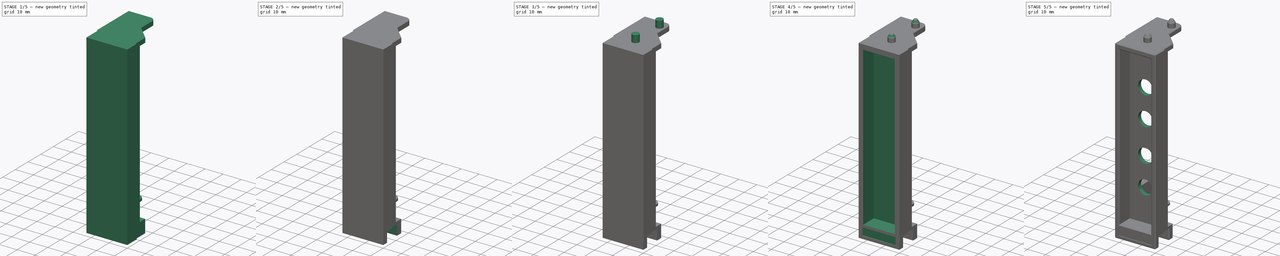
[diagram: build sequence overview — one tinted view per stage of 5, left to right]
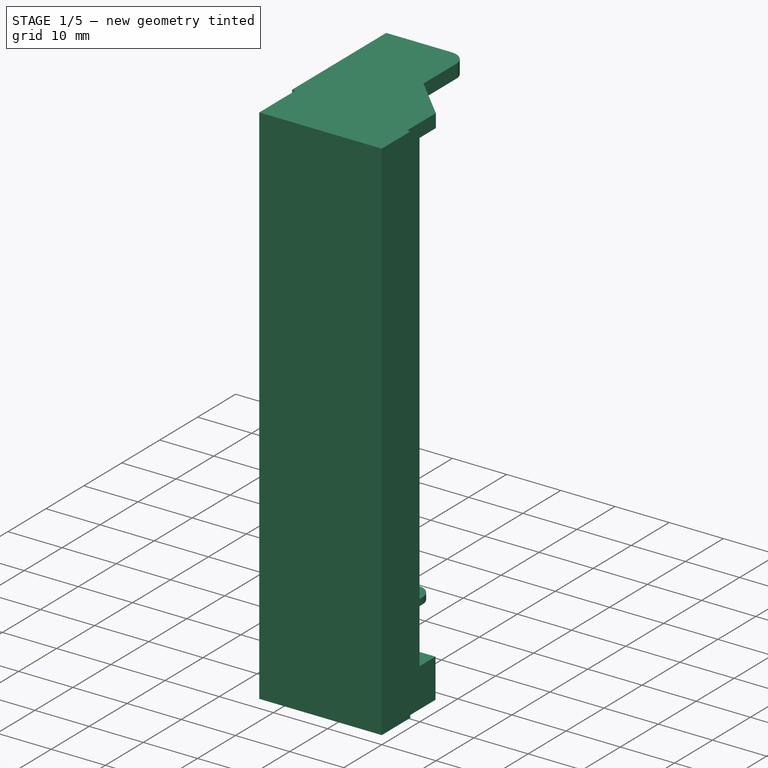
[diagram: stage 1 of 5 — iso view after this stage's code; geometry added in this stage tinted green]
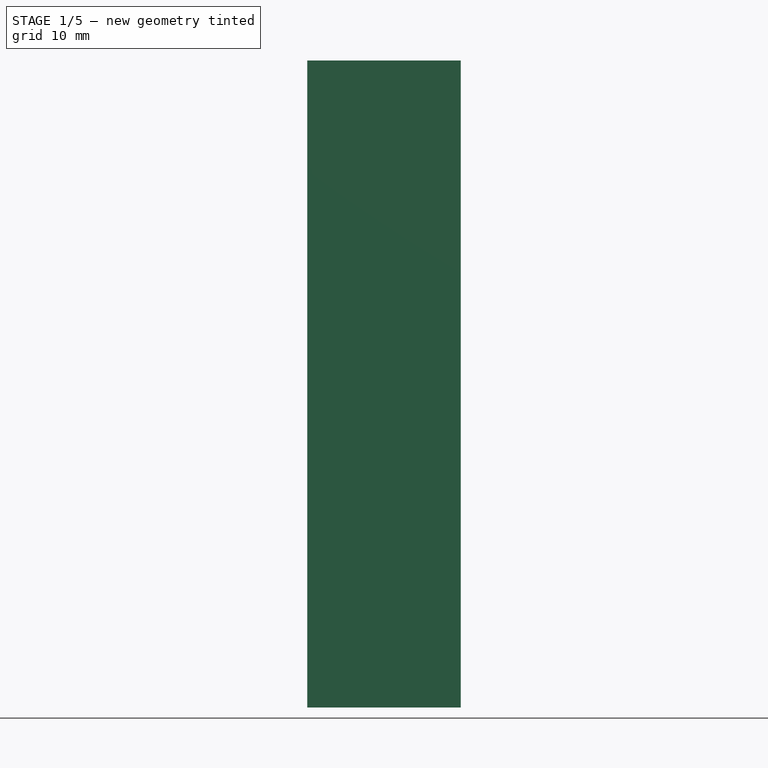
[diagram: stage 1 of 5 — front view after this stage's code; geometry added in this stage tinted green]
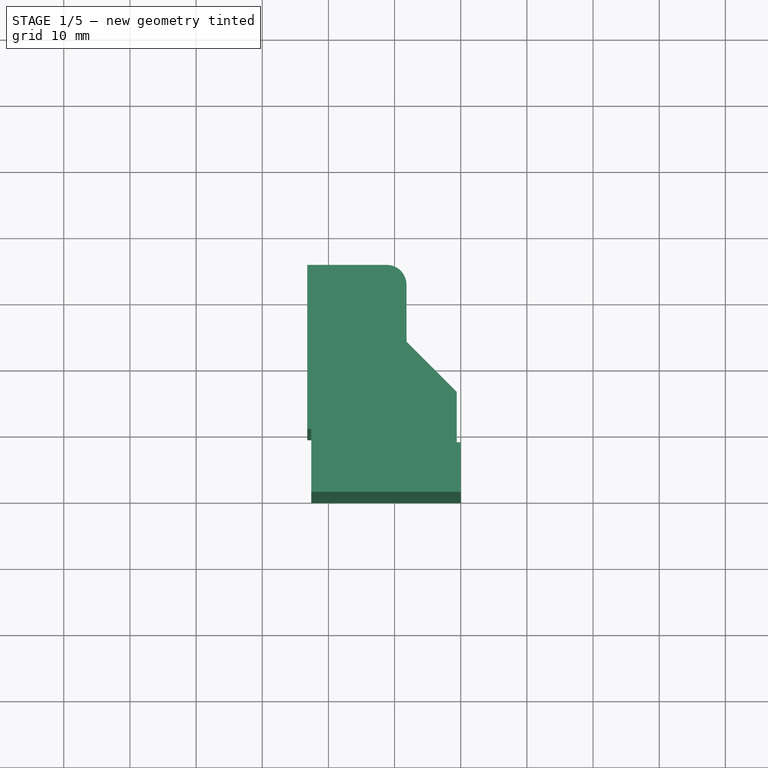
[diagram: stage 1 of 5 — top view after this stage's code; geometry added in this stage tinted green]
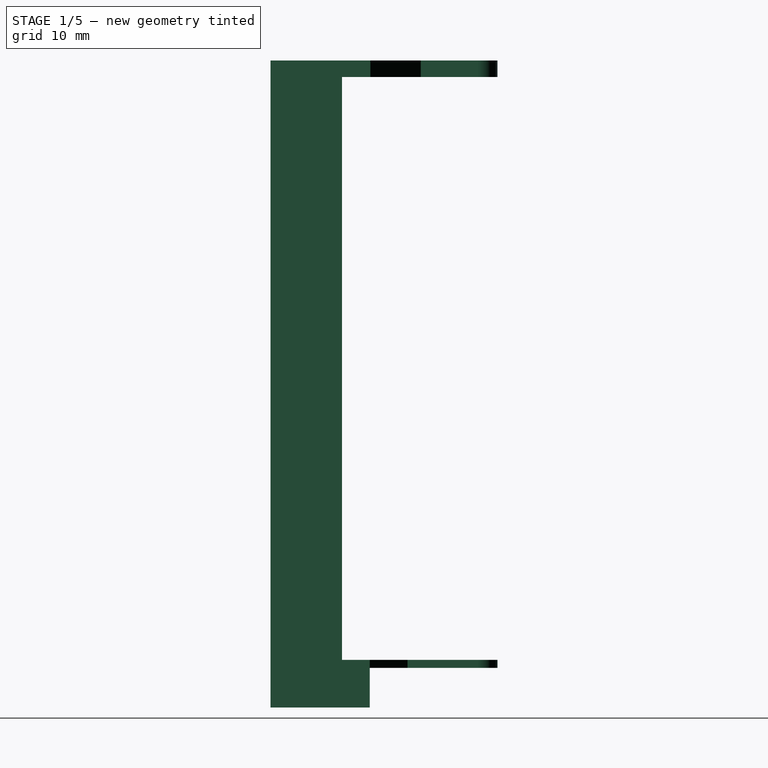
[diagram: stage 1 of 5 — right view after this stage's code; geometry added in this stage tinted green]
FCSTD DOCUMENT  (FreeCAD 0.20R29177 (Git))
Label: S1BackSide_OPNA
License: All rights reserved
LicenseURL: http://en.wikipedia.org/wiki/All_rights_reserved
objects: Sketcher::SketchObject×12, PartDesign::Pad×7, PartDesign::Chamfer×6, PartDesign::Pocket×5, PartDesign::Body×1
note: 49 computed .brp shape members not serialized (recipe doc carries the construction recipe); baked Part::Feature solids carry a one-line shape summary decoded from their .brp

FEATURE [Sketcher::SketchObject] Sketch
  FullyConstrained = true
  MapMode = 5
  Support = -> [XY_Plane]
  sketch-geometry (8):
    g0: LineSegment StartX=-22.6 StartY=0 StartZ=0 EndX=-22.6 EndY=9.5 EndZ=0
    g1: LineSegment StartX=-22.6 StartY=9.5 StartZ=0 EndX=-23.2 EndY=9.5 EndZ=0
    g2: LineSegment StartX=-23.2 StartY=9.5 StartZ=0 EndX=-23.2 EndY=10.8 EndZ=0
    g3: LineSegment StartX=-23.2 StartY=10.8 StartZ=0 EndX=-0.6 EndY=10.8 EndZ=0
    g4: LineSegment StartX=-0.6 StartY=10.8 StartZ=0 EndX=-0.6 EndY=7.5 EndZ=0
    g5: LineSegment StartX=-0.6 StartY=7.5 StartZ=0 EndX=0 EndY=7.5 EndZ=0
    g6: LineSegment StartX=0 StartY=7.5 StartZ=0 EndX=0 EndY=0 EndZ=0
    g7: LineSegment StartX=0 StartY=0 StartZ=0 EndX=-22.6 EndY=0 EndZ=0
  constraints (24):
    c: Vertical(g0)
    c: Coincident(g0,g1)
    c: Horizontal(g1)
    c: Coincident(g1,g2)
    c: Vertical(g2)
    c: Coincident(g2,g3)
    c: Horizontal(g3)
    c: Coincident(g3,g4)
    c: Vertical(g4)
    c: Coincident(g4,g5)
    c: Horizontal(g5)
    c: Coincident(g5,g6)
    c: Vertical(g6)
    c: Coincident(g6,g7)
    c: Coincident(g7,g0)
    c: Horizontal(g7)
    c: DistanceX(g7,g7) = 22.6
    c: DistanceX(g3,g3) = 22.6
    c: DistanceY(g6,g6) = 7.5
    c: DistanceY(g0,g0) = 9.5
    c: DistanceY(g2,g2) = 1.3
    c: DistanceX(g5,g5) = 0.6
    c: DistanceX(g6) = 0
    c: DistanceY(g6) = 0
FEATURE [PartDesign::Pad] Pad
  Direction = (0,0,1)
  Length = 97.8
  Length2 = 10
  Profile = -> Sketch
  ReferenceAxis = -> Sketch [N_Axis]
  Type = 0
FEATURE [Sketcher::SketchObject] Sketch001
  FullyConstrained = true
  MapMode = 5
  Placement = pos=(0,0,97.8) rot=(0,0,1;0rad)
  Support = -> [Pad]
  sketch-geometry (7):
    g0: LineSegment StartX=-23.2 StartY=10.8 StartZ=0 EndX=-23.2 EndY=34.3 EndZ=0
    g1: LineSegment StartX=-23.2 StartY=34.3 StartZ=0 EndX=-11.2 EndY=34.3 EndZ=0
    g2: LineSegment StartX=-8.2 StartY=31.3 StartZ=0 EndX=-8.2 EndY=22.7 EndZ=0
    g3: LineSegment StartX=-8.2 StartY=22.7 StartZ=0 EndX=-0.6 EndY=15.1 EndZ=0
    g4: LineSegment StartX=-0.6 StartY=15.1 StartZ=0 EndX=-0.6 EndY=10.8 EndZ=0
    g5: LineSegment StartX=-0.6 StartY=10.8 StartZ=0 EndX=-23.2 EndY=10.8 EndZ=0
    g6: ArcOfCircle CenterX=-11.2 CenterY=31.3 CenterZ=0 NormalX=0 NormalY=0 NormalZ=1 AngleXU=0 Radius=3 StartAngle=-9e-16 EndAngle=1.5708
  constraints (20):
    c: Vertical(g0)
    c: Coincident(g0,g1)
    c: Vertical(g2)
    c: Coincident(g3,g4)
    c: Vertical(g4)
    c: Coincident(g4,g5)
    c: Coincident(g5,g0)
    c: Horizontal(g5)
    c: DistanceX(g5,g5) = 22.6
    c: DistanceY(g0,g0) = 23.5
    c: DistanceY(g-1,g4) = 10.8
    c: DistanceX(g4,g-1) = 0.6
    c: Coincident(g2,g3)
    c: DistanceY(g4,g4) = 4.3
    c: Tangent(g1,g6) = 1.5708
    c: Tangent(g2,g6) = 1.5708
    c: Horizontal(g1)
    c: Radius(g6) = 3
    c: Angle(g3,g4) = 2.35619
    c: DistanceX(g0,g2) = 15
FEATURE [PartDesign::Pad] Pad001
  BaseFeature = -> Pad
  Direction = (0,0,1)
  Length = 2.5
  Length2 = 10
  Profile = -> Sketch001
  ReferenceAxis = -> Sketch001 [N_Axis]
  Reversed = true
  Type = 0
FEATURE [Sketcher::SketchObject] Sketch002
  FullyConstrained = true
  MapMode = 5
  Placement = pos=(0,0,0) rot=(1,0,0;3.14159rad)
  Support = -> [Pad001]
  sketch-geometry (4):
    g0: LineSegment StartX=-23.2 StartY=-10.8 StartZ=0 EndX=-0.6 EndY=-10.8 EndZ=0
    g1: LineSegment StartX=-0.6 StartY=-10.8 StartZ=0 EndX=-0.6 EndY=-15 EndZ=0
    g2: LineSegment StartX=-0.6 StartY=-15 StartZ=0 EndX=-23.2 EndY=-15 EndZ=0
    g3: LineSegment StartX=-23.2 StartY=-15 StartZ=0 EndX=-23.2 EndY=-10.8 EndZ=0
  constraints (12):
    c: Coincident(g0,g1)
    c: Coincident(g1,g2)
    c: Coincident(g2,g3)
    c: Coincident(g3,g0)
    c: Horizontal(g0)
    c: Horizontal(g2)
    c: Vertical(g1)
    c: Vertical(g3)
    c: DistanceY(g1,g1) = 4.2
    c: DistanceX(g0,g-1) = 0.6
    c: DistanceY(g0,g-1) = 10.8
    c: DistanceX(g2,g2) = 22.6
FEATURE [PartDesign::Pad] Pad002
  BaseFeature = -> Pad001
  Direction = (0,0,-1)
  Length = 7.2
  Length2 = 10
  Profile = -> Sketch002
  ReferenceAxis = -> Sketch002 [N_Axis]
  Reversed = true
  Type = 0
FEATURE [Sketcher::SketchObject] Sketch003
  FullyConstrained = true
  MapMode = 5
  Placement = pos=(0,0,7.2) rot=(0,0,1;0rad)
  Support = -> [Pad002]
  sketch-geometry (6):
    g0: LineSegment StartX=-23.2 StartY=15 StartZ=0 EndX=-23.2 EndY=34.3 EndZ=0
    g1: LineSegment StartX=-23.2 StartY=34.3 StartZ=0 EndX=-17.4 EndY=34.3 EndZ=0
    g2: LineSegment StartX=-14.4 StartY=31.3 StartZ=0 EndX=-14.4 EndY=20.7 EndZ=0
    g3: LineSegment StartX=-14.4 StartY=20.7 StartZ=0 EndX=-8.7 EndY=15 EndZ=0
    g4: LineSegment StartX=-8.7 StartY=15 StartZ=0 EndX=-23.2 EndY=15 EndZ=0
    g5: ArcOfCircle CenterX=-17.4 CenterY=31.3 CenterZ=0 NormalX=0 NormalY=0 NormalZ=1 AngleXU=0 Radius=3 StartAngle=0 EndAngle=1.5708
  constraints (17):
    c: Vertical(g0)
    c: Coincident(g0,g1)
    c: Horizontal(g1)
    c: Vertical(g2)
    c: Coincident(g2,g3)
    c: Coincident(g3,g4)
    c: Coincident(g4,g0)
    c: Horizontal(g4)
    c: DistanceY(g0,g0) = 19.3
    c: DistanceX(g4,g4) = 14.5
    c: DistanceX(g3,g-1) = 8.7
    c: DistanceY(g-1,g3) = 15
    c: Angle(g3,g4) = 0.785398
    c: Tangent(g1,g5) = 1.5708
    c: Tangent(g2,g5) = 1.5708
    c: Radius(g5) = 3
    c: DistanceX(g0,g2) = 8.8
FEATURE [PartDesign::Pad] Pad003
  BaseFeature = -> Pad002
  Direction = (0,0,1)
  Length = 1.2
  Length2 = 10
  Profile = -> Sketch003
  ReferenceAxis = -> Sketch003 [N_Axis]
  Reversed = true
  Type = 0
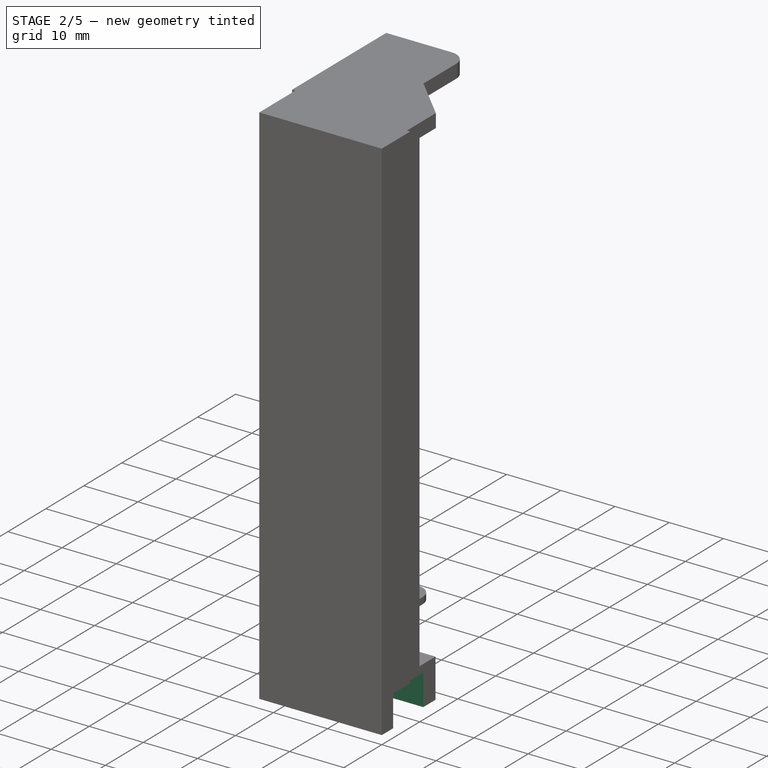
[diagram: stage 2 of 5 — iso view after this stage's code; geometry added in this stage tinted green]
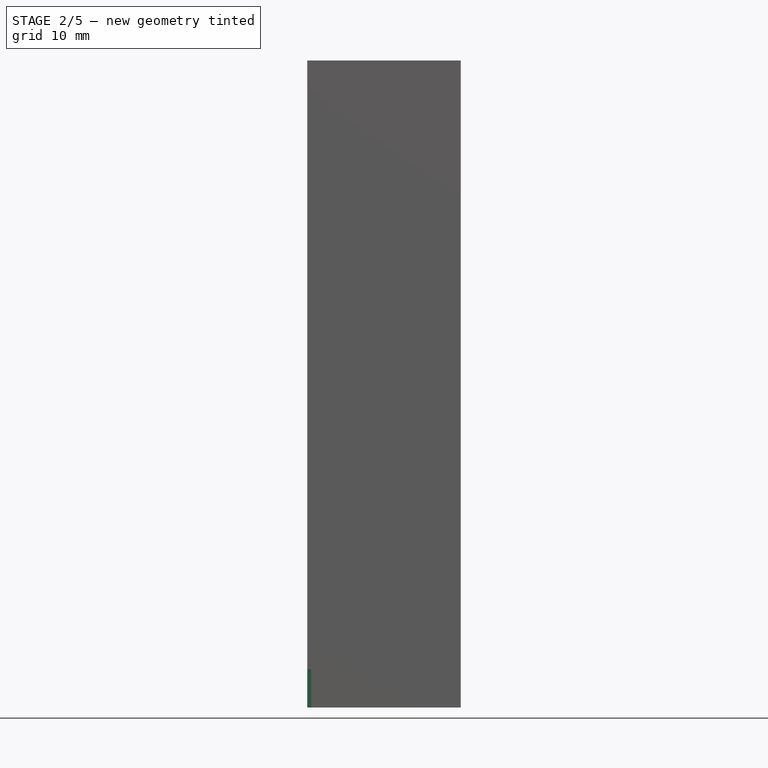
[diagram: stage 2 of 5 — front view after this stage's code; geometry added in this stage tinted green]
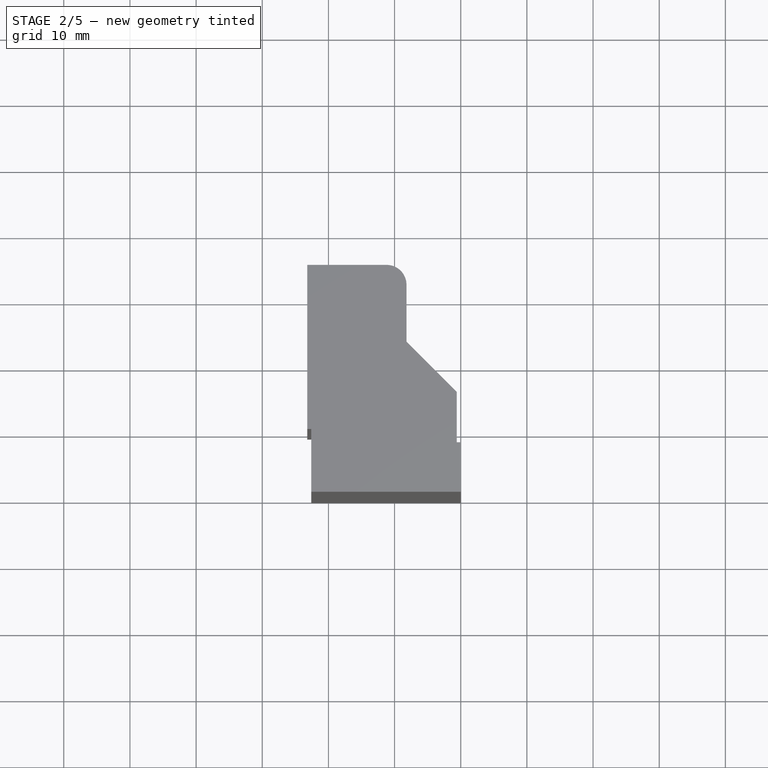
[diagram: stage 2 of 5 — top view after this stage's code; geometry added in this stage tinted green]
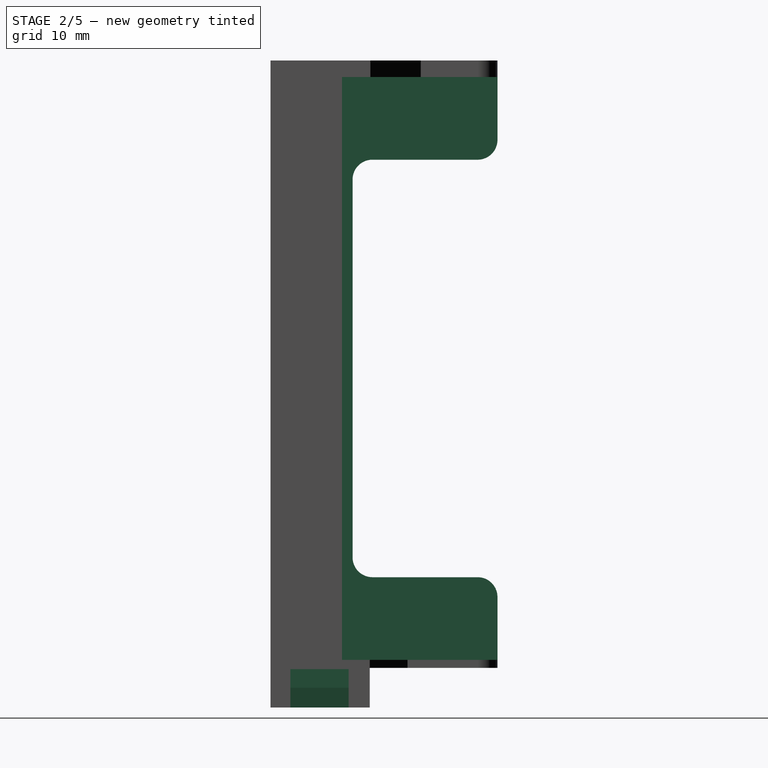
[diagram: stage 2 of 5 — right view after this stage's code; geometry added in this stage tinted green]
FEATURE [Sketcher::SketchObject] Sketch004
  FullyConstrained = true
  MapMode = 5
  Placement = pos=(-23.2,0,0) rot=(0.57735,-0.57735,-0.57735;2.0944rad)
  Support = -> [Pad003]
  sketch-geometry (12):
    g0: LineSegment StartX=-34.3 StartY=7.2 StartZ=0 EndX=-34.3 EndY=16.7 EndZ=0
    g1: LineSegment StartX=-31.3 StartY=19.7 StartZ=0 EndX=-15.4 EndY=19.7 EndZ=0
    g2: LineSegment StartX=-12.4 StartY=22.7 StartZ=0 EndX=-12.4 EndY=79.8 EndZ=0
    g3: LineSegment StartX=-15.4 StartY=82.8 StartZ=0 EndX=-31.3 EndY=82.8 EndZ=0
    g4: LineSegment StartX=-34.3 StartY=85.8 StartZ=0 EndX=-34.3 EndY=95.3 EndZ=0
    g5: LineSegment StartX=-34.3 StartY=95.3 StartZ=0 EndX=-10.8 EndY=95.3 EndZ=0
    g6: LineSegment StartX=-10.8 StartY=95.3 StartZ=0 EndX=-10.8 EndY=7.2 EndZ=0
    g7: LineSegment StartX=-10.8 StartY=7.2 StartZ=0 EndX=-34.3 EndY=7.2 EndZ=0
    g8: ArcOfCircle CenterX=-31.3 CenterY=16.7 CenterZ=0 NormalX=0 NormalY=0 NormalZ=1 AngleXU=0 Radius=3 StartAngle=1.5708 EndAngle=3.14159
    g9: ArcOfCircle CenterX=-15.4 CenterY=22.7 CenterZ=0 NormalX=0 NormalY=0 NormalZ=1 AngleXU=0 Radius=3 StartAngle=4.71239 EndAngle=6.28319
    g10: ArcOfCircle CenterX=-31.3 CenterY=85.8 CenterZ=0 NormalX=0 NormalY=0 NormalZ=1 AngleXU=0 Radius=3 StartAngle=3.14159 EndAngle=4.71239
    g11: ArcOfCircle CenterX=-15.4 CenterY=79.8 CenterZ=0 NormalX=0 NormalY=0 NormalZ=1 AngleXU=0 Radius=3 StartAngle=1.3e-15 EndAngle=1.5708
  constraints (32):
    c: Vertical(g0)
    c: Horizontal(g1)
    c: Vertical(g2)
    c: Horizontal(g3)
    c: Vertical(g4)
    c: Coincident(g4,g5)
    c: Horizontal(g5)
    c: Coincident(g5,g6)
    c: Vertical(g6)
    c: Coincident(g6,g7)
    c: Coincident(g7,g0)
    c: Horizontal(g7)
    c: Tangent(g0,g8) = 1.5708
    c: Tangent(g1,g8) = 1.5708
    c: Tangent(g1,g9) = -1.5708
    c: Tangent(g2,g9) = -1.5708
    c: Tangent(g3,g10) = 1.5708
    c: Tangent(g4,g10) = 1.5708
    c: Tangent(g2,g11) = -1.5708
    c: Tangent(g3,g11) = -1.5708
    c: Radius(g11) = 3
    c: Radius(g10) = 3
    c: Radius(g9) = 3
    c: Radius(g8) = 3
    c: DistanceX(g7,g7) = 23.5
    c: DistanceX(g6,g-1) = 10.8
    c: DistanceY(g-1,g6) = 7.2
    c: DistanceX(g5,g5) = 23.5
    c: DistanceY(g6,g6) = 88.1
    c: DistanceX(g2,g6) = 1.6
    c: DistanceY(g3,g4) = 12.5
    c: DistanceY(g0,g1) = 12.5
FEATURE [PartDesign::Pad] Pad004
  BaseFeature = -> Pad003
  Direction = (-1,0,0)
  Length = 2.5
  Length2 = 10
  Profile = -> Sketch004
  ReferenceAxis = -> Sketch004 [N_Axis]
  Reversed = true
  Type = 0
FEATURE [Sketcher::SketchObject] Sketch005
  FullyConstrained = true
  MapMode = 5
  Placement = pos=(0,0,0) rot=(1,0,0;3.14159rad)
  Support = -> [Pad004]
  sketch-geometry (8):
    g0: LineSegment StartX=-23.2 StartY=-3 StartZ=0 EndX=-12.8 EndY=-3 EndZ=0
    g1: LineSegment StartX=-12.8 StartY=-3 StartZ=0 EndX=-12.8 EndY=-11.8 EndZ=0
    g2: LineSegment StartX=-12.8 StartY=-11.8 StartZ=0 EndX=-23.2 EndY=-11.8 EndZ=0
    g3: LineSegment StartX=-23.2 StartY=-11.8 StartZ=0 EndX=-23.2 EndY=-3 EndZ=0
    g4: LineSegment StartX=0 StartY=-3 StartZ=0 EndX=-9.8 EndY=-3 EndZ=0
    g5: LineSegment StartX=-9.8 StartY=-3 StartZ=0 EndX=-9.8 EndY=-11.8 EndZ=0
    g6: LineSegment StartX=-9.8 StartY=-11.8 StartZ=0 EndX=0 EndY=-11.8 EndZ=0
    g7: LineSegment StartX=0 StartY=-11.8 StartZ=0 EndX=0 EndY=-3 EndZ=0
  constraints (24):
    c: Coincident(g0,g1)
    c: Coincident(g1,g2)
    c: Coincident(g2,g3)
    c: Coincident(g3,g0)
    c: Horizontal(g0)
    c: Horizontal(g2)
    c: Vertical(g1)
    c: Coincident(g4,g5)
    c: Coincident(g5,g6)
    c: Coincident(g6,g7)
    c: Coincident(g7,g4)
    c: Horizontal(g4)
    c: Horizontal(g6)
    c: Vertical(g5)
    c: Vertical(g7)
    c: DistanceY(g4,g-1) = 3
    c: DistanceY(g7,g7) = 8.8
    c: DistanceX(g-1,g4) = 0
    c: DistanceX(g4,g4) = 9.8
    c: DistanceY(g1,g1) = 8.8
    c: DistanceY(g0,g4) = 0
    c: DistanceX(g0,g0) = 10.4
    c: DistanceX(g0,g4) = 3
    c: Vertical(g3)
FEATURE [PartDesign::Pocket] Pocket
  BaseFeature = -> Pad004
  Direction = (0,0,1)
  Length = 5.8
  Length2 = 5
  Profile = -> Sketch005
  ReferenceAxis = -> Sketch005 [N_Axis]
  Type = 0
FEATURE [PartDesign::Chamfer] Chamfer
  Angle = 45
  Base = -> Pocket [Edge10]
  BaseFeature = -> Pocket
  ChamferType = 1
  FlipDirection = false
  Size = 0.6
  Size2 = 3
  SupportTransform = false
  UseAllEdges = false
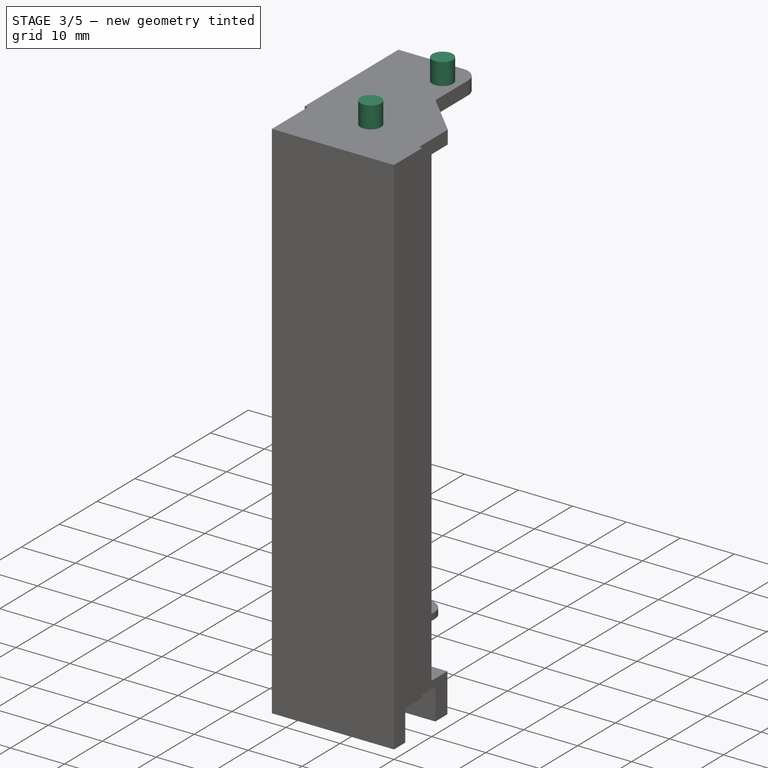
[diagram: stage 3 of 5 — iso view after this stage's code; geometry added in this stage tinted green]
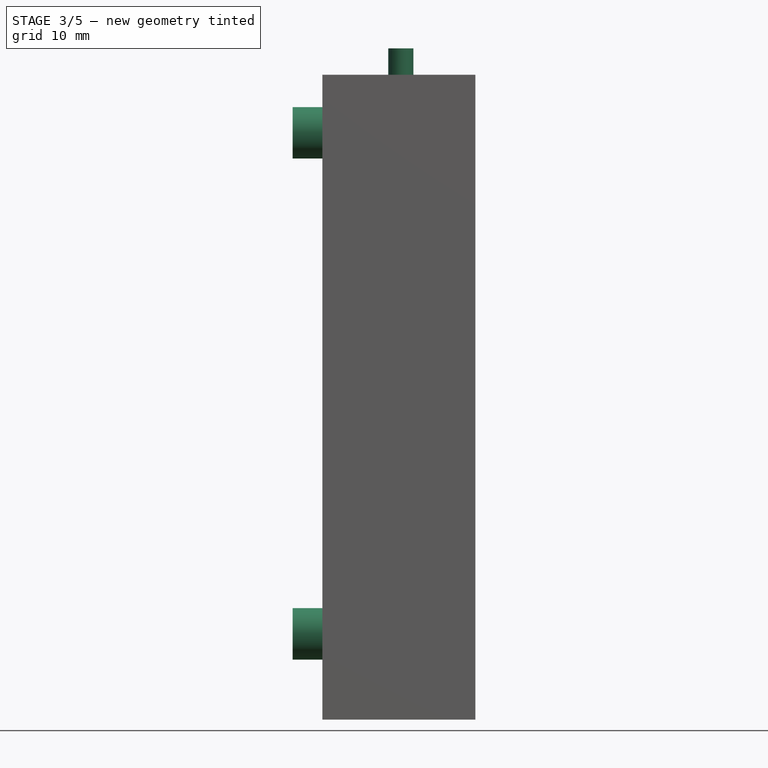
[diagram: stage 3 of 5 — front view after this stage's code; geometry added in this stage tinted green]
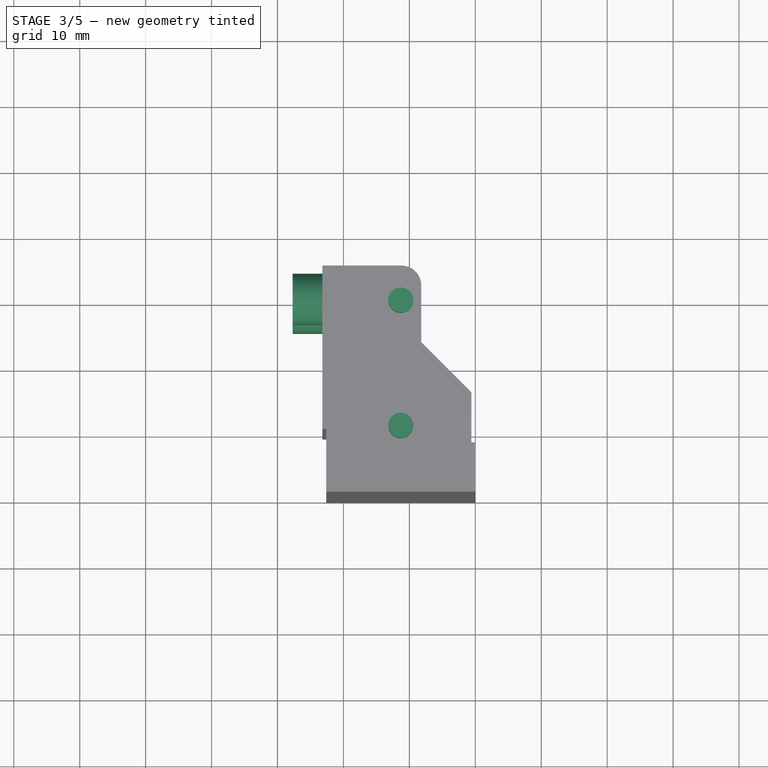
[diagram: stage 3 of 5 — top view after this stage's code; geometry added in this stage tinted green]
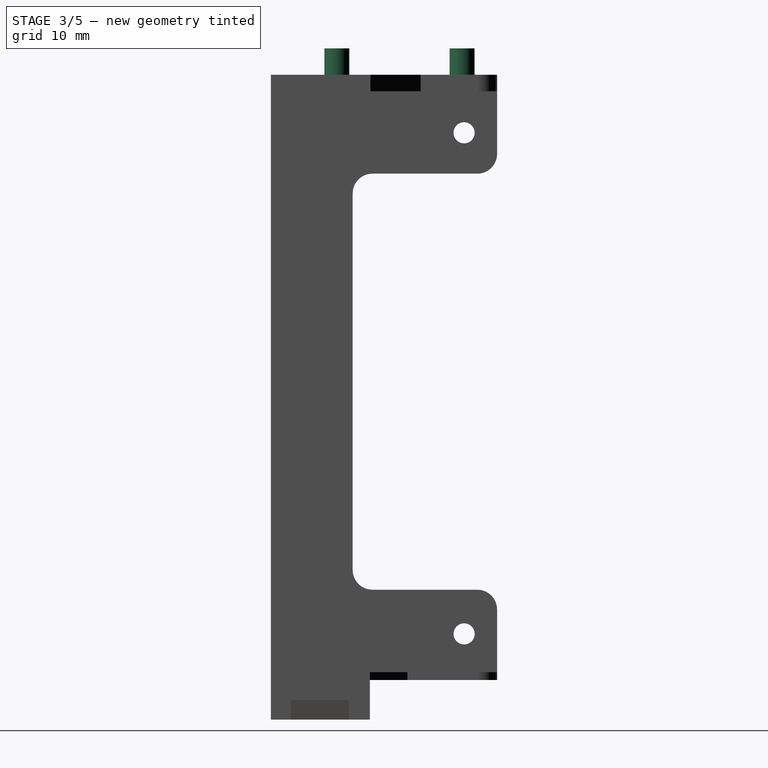
[diagram: stage 3 of 5 — right view after this stage's code; geometry added in this stage tinted green]
FEATURE [PartDesign::Chamfer] Chamfer001
  Angle = 45
  Base = -> Chamfer [Edge3]
  BaseFeature = -> Chamfer
  ChamferType = 1
  FlipDirection = false
  Size = 0.6
  Size2 = 3
  SupportTransform = false
  UseAllEdges = false
FEATURE [Sketcher::SketchObject] Sketch006
  FullyConstrained = true
  MapMode = 5
  Placement = pos=(-23.2,0,0) rot=(0.57735,-0.57735,-0.57735;2.0944rad)
  Support = -> [Chamfer001]
  sketch-geometry (2):
    g0: Circle CenterX=-29.3 CenterY=89 CenterZ=0 NormalX=0 NormalY=0 NormalZ=1 AngleXU=0 Radius=3.9
    g1: Circle CenterX=-29.3 CenterY=13 CenterZ=0 NormalX=0 NormalY=0 NormalZ=1 AngleXU=0 Radius=3.9
  constraints (6):
    c: Diameter(g0) = 7.8
    c: Diameter(g1) = 7.8
    c: DistanceX(g1,g-1) = 29.3
    c: DistanceX(g1,g0) = 0
    c: DistanceY(g-1,g1) = 13
    c: DistanceY(g1,g0) = 76
FEATURE [PartDesign::Pad] Pad005
  BaseFeature = -> Chamfer001
  Direction = (-1,0,0)
  Length = 4.5
  Length2 = 10
  Profile = -> Sketch006
  ReferenceAxis = -> Sketch006 [N_Axis]
  Type = 0
FEATURE [Sketcher::SketchObject] Sketch007
  FullyConstrained = true
  MapMode = 5
  Placement = pos=(-23.2,0,0) rot=(0.57735,-0.57735,-0.57735;2.0944rad)
  Support = -> [Pad005]
  sketch-geometry (2):
    g0: Circle CenterX=-29.3 CenterY=13 CenterZ=0 NormalX=0 NormalY=0 NormalZ=1 AngleXU=0 Radius=1.6
    g1: Circle CenterX=-29.3 CenterY=89 CenterZ=0 NormalX=0 NormalY=0 NormalZ=1 AngleXU=0 Radius=1.6
  constraints (6):
    c: Diameter(g1) = 3.2
    c: Diameter(g0) = 3.2
    c: DistanceX(g0,g-1) = 29.3
    c: DistanceY(g-1,g0) = 13
    c: DistanceX(g0,g1) = 0
    c: DistanceY(g0,g1) = 76
FEATURE [PartDesign::Pocket] Pocket001
  BaseFeature = -> Pad005
  Direction = (1,0,0)
  Length = 10
  Length2 = 5
  Midplane = true
  Profile = -> Sketch007
  ReferenceAxis = -> Sketch007 [N_Axis]
  Type = 0
FEATURE [Sketcher::SketchObject] Sketch008
  FullyConstrained = true
  MapMode = 5
  Placement = pos=(0,0,97.8) rot=(0,0,1;0rad)
  Support = -> [Pocket001]
  sketch-geometry (2):
    g0: Circle CenterX=-11.3 CenterY=10 CenterZ=0 NormalX=0 NormalY=0 NormalZ=1 AngleXU=0 Radius=1.9
    g1: Circle CenterX=-11.3 CenterY=29 CenterZ=0 NormalX=0 NormalY=0 NormalZ=1 AngleXU=0 Radius=1.9
  constraints (6):
    c: Diameter(g0) = 3.8
    c: Diameter(g1) = 3.8
    c: DistanceX(g1,g0) = 0
    c: DistanceX(g0,g-1) = 11.3
    c: DistanceY(g0,g1) = 19
    c: DistanceY(g-1,g0) = 10
FEATURE [PartDesign::Pad] Pad006
  BaseFeature = -> Pocket001
  Direction = (0,0,1)
  Length = 4
  Length2 = 10
  Profile = -> Sketch008
  ReferenceAxis = -> Sketch008 [N_Axis]
  Type = 0
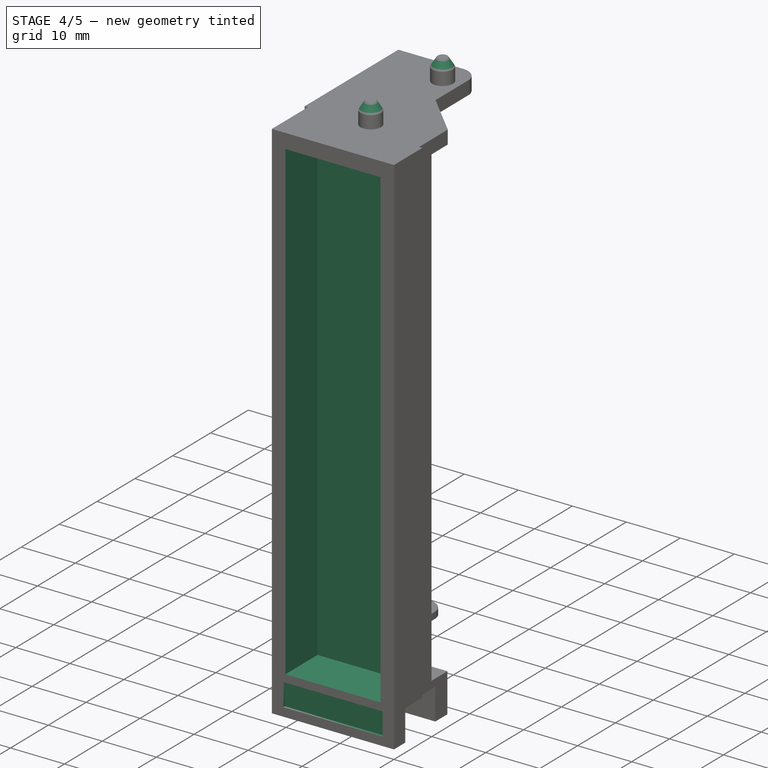
[diagram: stage 4 of 5 — iso view after this stage's code; geometry added in this stage tinted green]
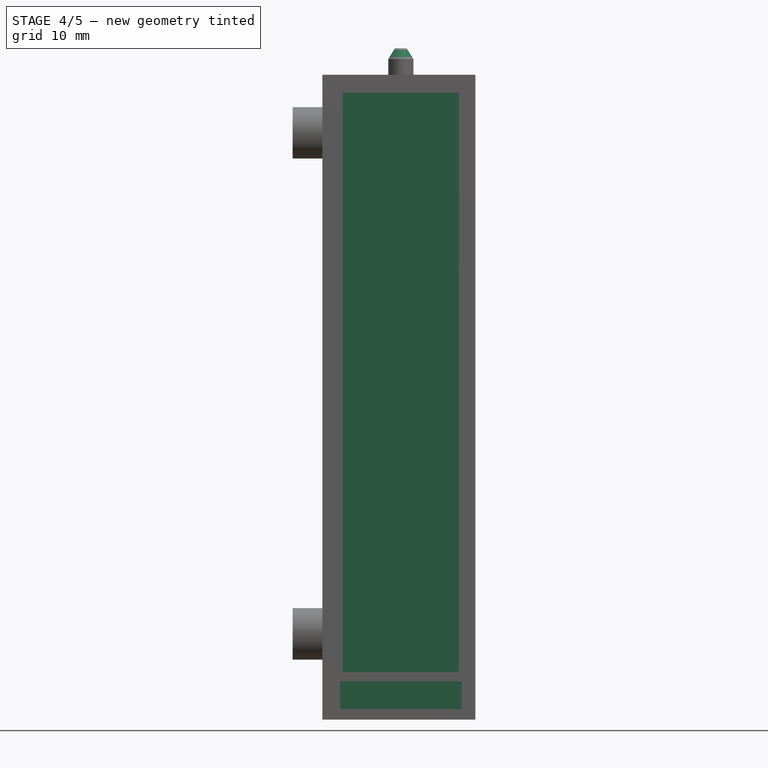
[diagram: stage 4 of 5 — front view after this stage's code; geometry added in this stage tinted green]
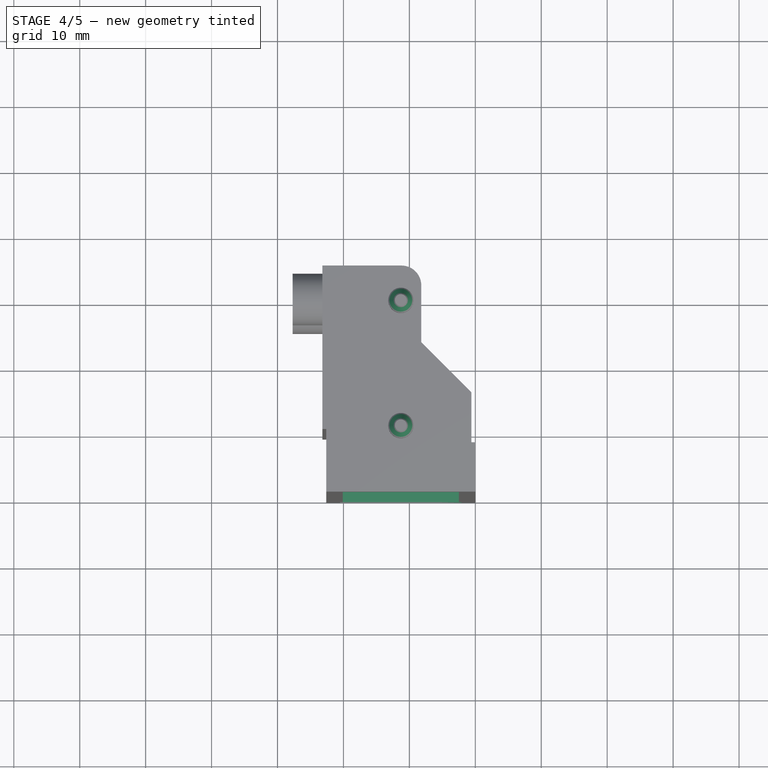
[diagram: stage 4 of 5 — top view after this stage's code; geometry added in this stage tinted green]
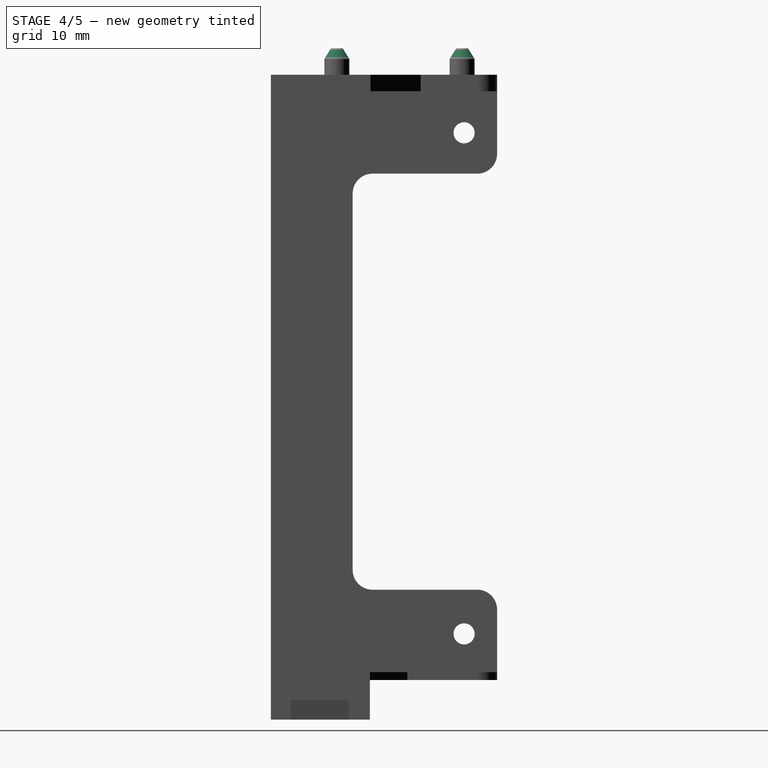
[diagram: stage 4 of 5 — right view after this stage's code; geometry added in this stage tinted green]
FEATURE [PartDesign::Chamfer] Chamfer002
  Angle = 45
  Base = -> Pad006 [Edge162,Edge116]
  BaseFeature = -> Pad006
  ChamferType = 1
  FlipDirection = false
  Size = 1.6
  Size2 = 1
  SupportTransform = false
  UseAllEdges = false
FEATURE [Sketcher::SketchObject] Sketch009
  FullyConstrained = true
  MapMode = 5
  Placement = pos=(0,0,0) rot=(1,0,0;1.5708rad)
  Support = -> [Chamfer002]
  sketch-geometry (4):
    g0: LineSegment StartX=-20.5 StartY=1.6 StartZ=0 EndX=-2.1 EndY=1.6 EndZ=0
    g1: LineSegment StartX=-2.1 StartY=1.6 StartZ=0 EndX=-2.1 EndY=5.8 EndZ=0
    g2: LineSegment StartX=-2.1 StartY=5.8 StartZ=0 EndX=-20.5 EndY=5.8 EndZ=0
    g3: LineSegment StartX=-20.5 StartY=5.8 StartZ=0 EndX=-20.5 EndY=1.6 EndZ=0
  constraints (12):
    c: Coincident(g0,g1)
    c: Coincident(g1,g2)
    c: Coincident(g2,g3)
    c: Coincident(g3,g0)
    c: Horizontal(g0)
    c: Horizontal(g2)
    c: Vertical(g1)
    c: Vertical(g3)
    c: DistanceX(g0,g-1) = 2.1
    c: DistanceY(g-1,g0) = 1.6
    c: DistanceY(g1,g1) = 4.2
    c: DistanceX(g0,g0) = 18.4
FEATURE [PartDesign::Pocket] Pocket002
  BaseFeature = -> Chamfer002
  Direction = (0,1,-2e-16)
  Length = 0.4
  Length2 = 5
  Profile = -> Sketch009
  ReferenceAxis = -> Sketch009 [N_Axis]
  Type = 0
FEATURE [Sketcher::SketchObject] Sketch010
  FullyConstrained = true
  MapMode = 5
  Placement = pos=(0,0,0) rot=(1,0,0;1.5708rad)
  Support = -> [Pocket002]
  sketch-geometry (4):
    g0: LineSegment StartX=-20.1 StartY=95.1 StartZ=0 EndX=-2.5 EndY=95.1 EndZ=0
    g1: LineSegment StartX=-2.5 StartY=95.1 StartZ=0 EndX=-2.5 EndY=7.2 EndZ=0
    g2: LineSegment StartX=-2.5 StartY=7.2 StartZ=0 EndX=-20.1 EndY=7.2 EndZ=0
    g3: LineSegment StartX=-20.1 StartY=7.2 StartZ=0 EndX=-20.1 EndY=95.1 EndZ=0
  constraints (12):
    c: Coincident(g0,g1)
    c: Coincident(g1,g2)
    c: Coincident(g2,g3)
    c: Coincident(g3,g0)
    c: Horizontal(g0)
    c: Horizontal(g2)
    c: Vertical(g1)
    c: Vertical(g3)
    c: DistanceX(g1,g-1) = 2.5
    c: DistanceY(g-1,g1) = 7.2
    c: DistanceX(g2,g2) = 17.6
    c: DistanceY(g1,g1) = 87.9
FEATURE [PartDesign::Pocket] Pocket003
  BaseFeature = -> Pocket002
  Direction = (0,1,-2e-16)
  Length = 8.5
  Length2 = 5
  Profile = -> Sketch010
  ReferenceAxis = -> Sketch010 [N_Axis]
  Type = 0
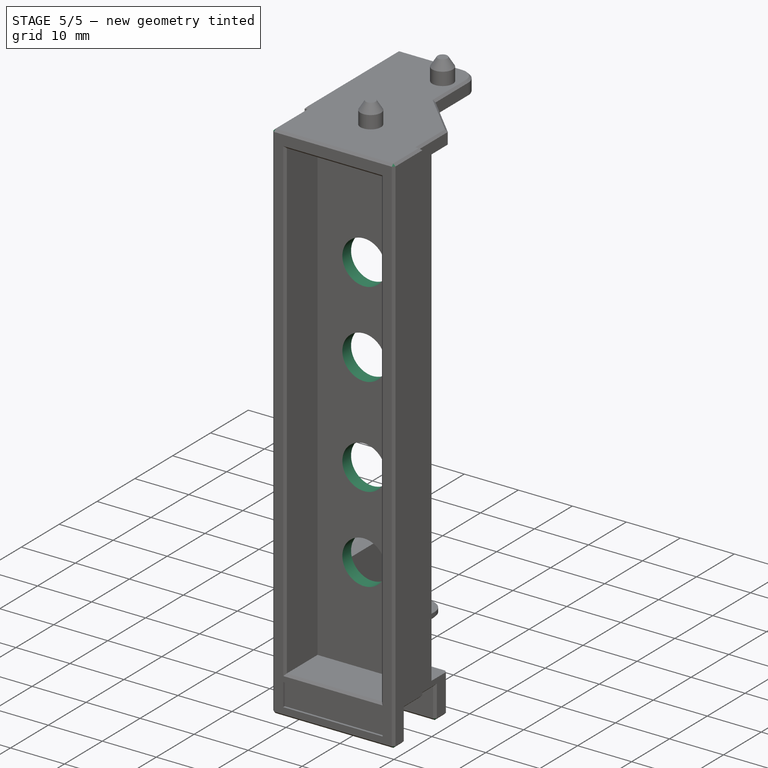
[diagram: stage 5 of 5 — iso view after this stage's code; geometry added in this stage tinted green]
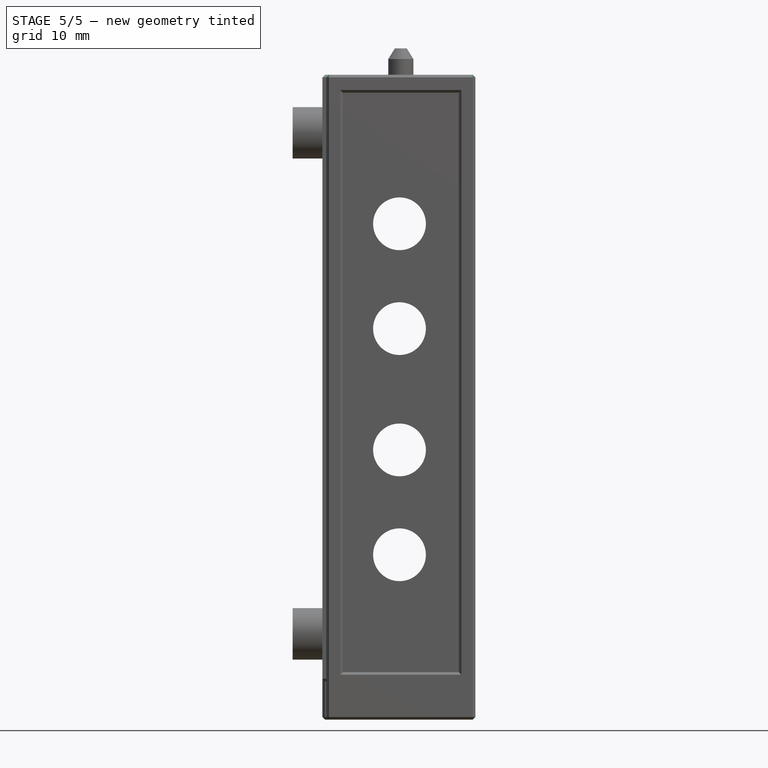
[diagram: stage 5 of 5 — front view after this stage's code; geometry added in this stage tinted green]
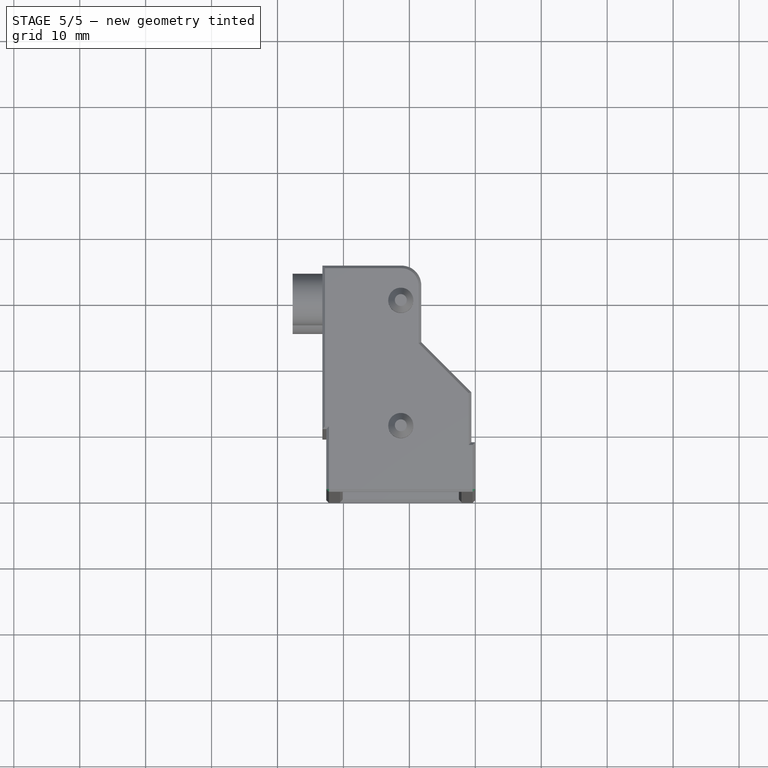
[diagram: stage 5 of 5 — top view after this stage's code; geometry added in this stage tinted green]
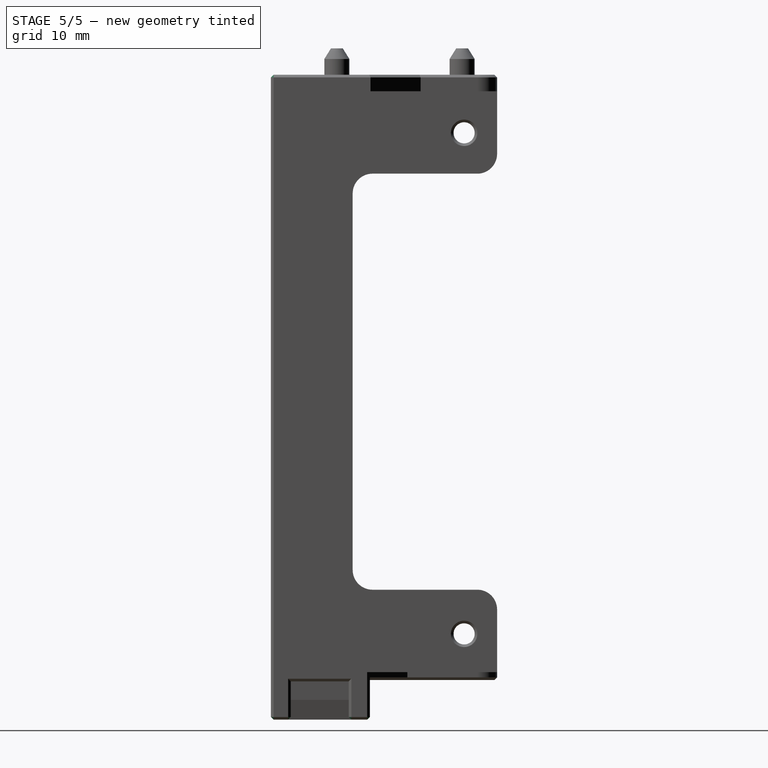
[diagram: stage 5 of 5 — right view after this stage's code; geometry added in this stage tinted green]
FEATURE [PartDesign::Chamfer] Chamfer003
  Angle = 45
  Base = -> Pocket003 [Edge178,Edge179]
  BaseFeature = -> Pocket003
  ChamferType = 0
  FlipDirection = false
  Size = 0.4
  Size2 = 1
  SupportTransform = false
  UseAllEdges = false
FEATURE [PartDesign::Chamfer] Chamfer004
  Angle = 45
  Base = -> Chamfer003 [Edge159,Edge156,Edge161,Edge164,Edge163,Edge162,Edge160,Edge155,Edge157,Edge172,Edge152,Edge133,Edge84,Edge81,Edge77,Edge132,Edge106,Edge78,Edge126,Edge121,Edge122,Edge104,Edge97,Edge125,Edge120,Edge75,Edge71,Edge69,Edge67,Edge151,Edge118,Edge117,Edge73,Edge82,Edge83,Edge158,Edge140,Edge141,Edge102,Edge108,+1 more]
  BaseFeature = -> Chamfer003
  ChamferType = 0
  FlipDirection = false
  Size = 0.4
  Size2 = 1
  SupportTransform = false
  UseAllEdges = false
FEATURE [PartDesign::Chamfer] Chamfer005
  Angle = 45
  Base = -> Chamfer004 [Edge39,Edge41,Edge43,Edge44,Edge42]
  BaseFeature = -> Chamfer004
  ChamferType = 0
  FlipDirection = false
  Size = 0.4
  Size2 = 1
  SupportTransform = false
  UseAllEdges = false
FEATURE [Sketcher::SketchObject] Sketch011
  FullyConstrained = true
  MapMode = 5
  Placement = pos=(0,10.8,0) rot=(0,0.707107,0.707107;3.14159rad)
  Support = -> [Chamfer005]
  sketch-geometry (4):
    g0: Circle CenterX=11.5 CenterY=25 CenterZ=0 NormalX=0 NormalY=0 NormalZ=1 AngleXU=0 Radius=4
    g1: Circle CenterX=11.5 CenterY=40.9 CenterZ=0 NormalX=0 NormalY=0 NormalZ=1 AngleXU=0 Radius=4
    g2: Circle CenterX=11.5 CenterY=59.3 CenterZ=0 NormalX=0 NormalY=0 NormalZ=1 AngleXU=0 Radius=4
    g3: Circle CenterX=11.5 CenterY=75.2 CenterZ=0 NormalX=0 NormalY=0 NormalZ=1 AngleXU=0 Radius=4
  constraints (12):
    c: Diameter(g0) = 8
    c: DistanceY(g-1,g0) = 25
    c: Diameter(g1) = 8
    c: DistanceX(g1,g0) = 0
    c: DistanceY(g-1,g1) = 40.9
    c: Diameter(g2) = 8
    c: DistanceX(g2,g1) = 0
    c: DistanceY(g-1,g2) = 59.3
    c: Diameter(g3) = 8
    c: DistanceX(g3,g2) = 0
    c: DistanceY(g-1,g3) = 75.2
    c: DistanceX(g-1,g0) = 11.5
FEATURE [PartDesign::Pocket] Pocket004
  BaseFeature = -> Chamfer005
  Direction = (0,-1,2e-16)
  Length = 5
  Length2 = 5
  Profile = -> Sketch011
  ReferenceAxis = -> Sketch011 [N_Axis]
  Type = 0
FEATURE [PartDesign::Body] Body
  Group = -> [Sketch,Pad,Sketch001,Pad001,Sketch002,Pad002,Sketch003,Pad003,Sketch004,Pad004,Sketch005,Pocket,Chamfer,Chamfer001,Sketch006,Pad005,Sketch007,Pocket001,Sketch008,Pad006,Chamfer002,Sketch009,Pocket002,Sketch010,Pocket003,Chamfer003,Chamfer004,Chamfer005,Sketch011,Pocket004]
  Origin = -> Origin
  Tip = -> Pocket004
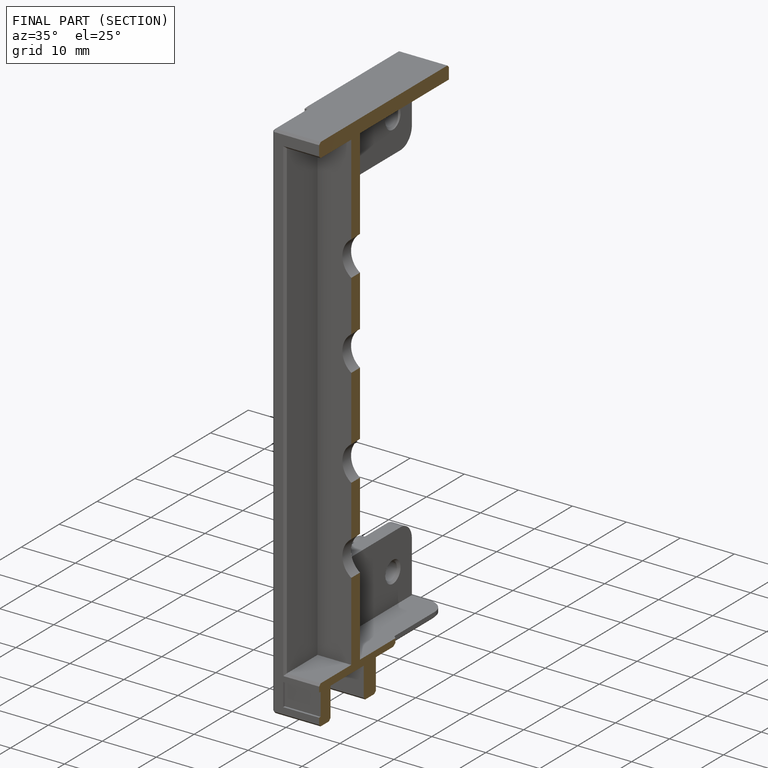
[diagram: finished part — half-section view (interior)]
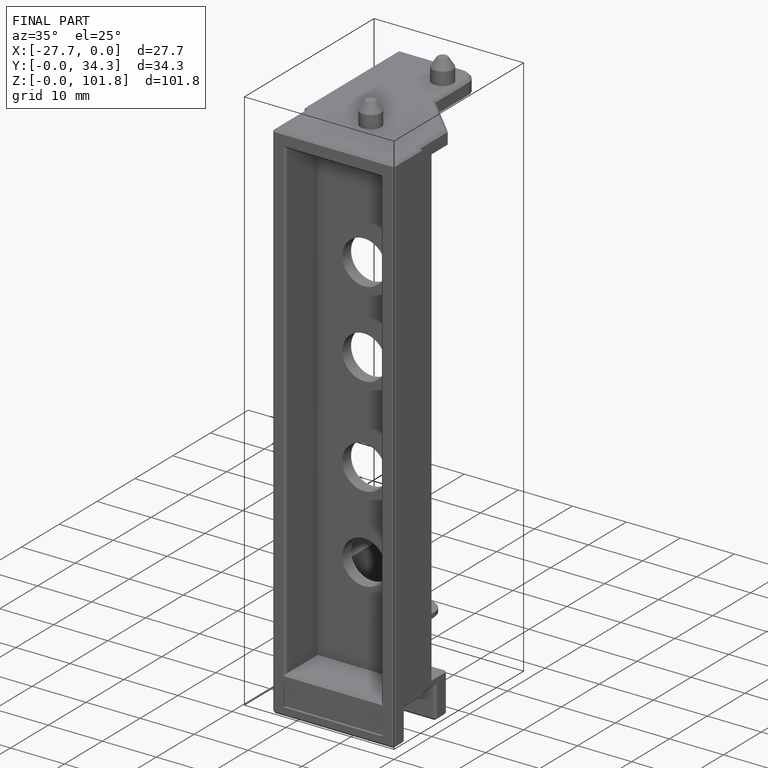
[diagram: finished part — iso view with bounding-box wireframe]
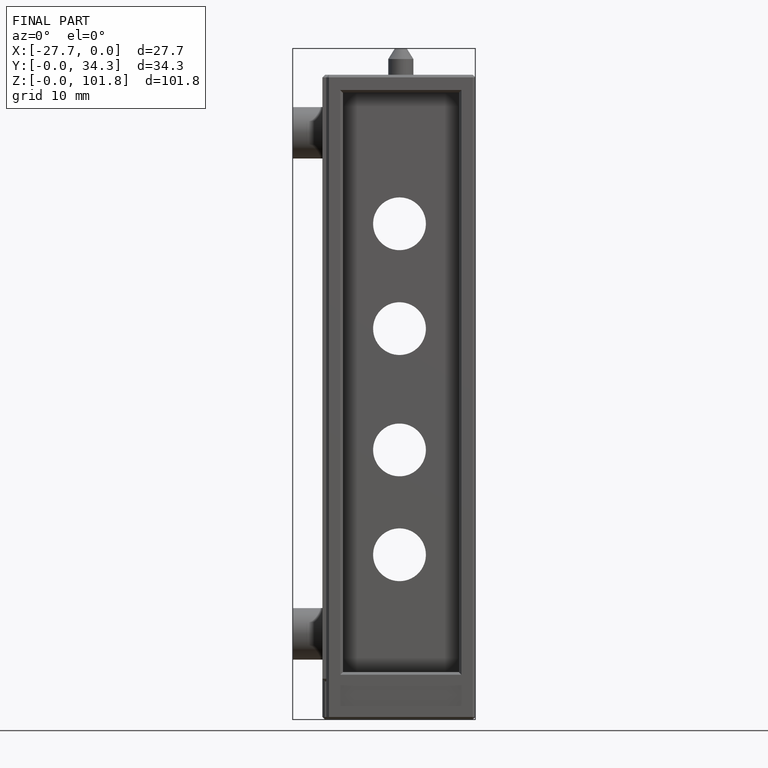
[diagram: finished part — front view with bounding-box wireframe]
